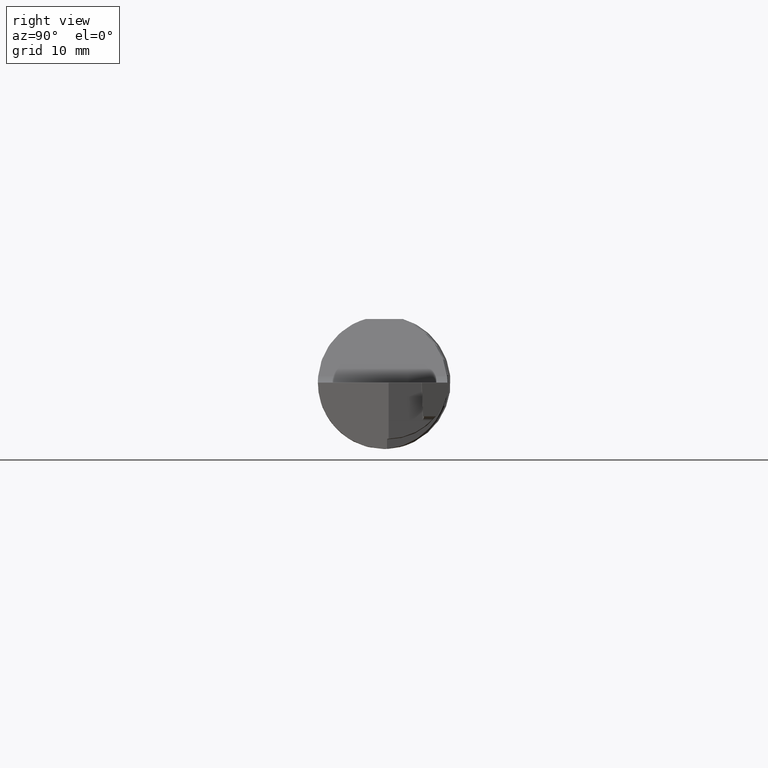
[diagram: clean part render]
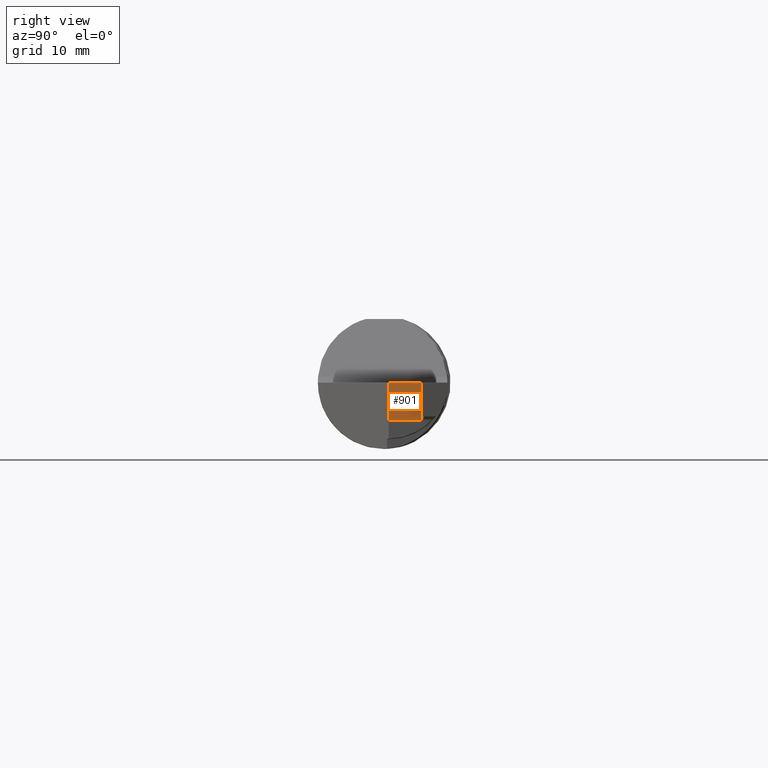
[diagram: same view with one face highlighted and labeled with its STEP entity id]
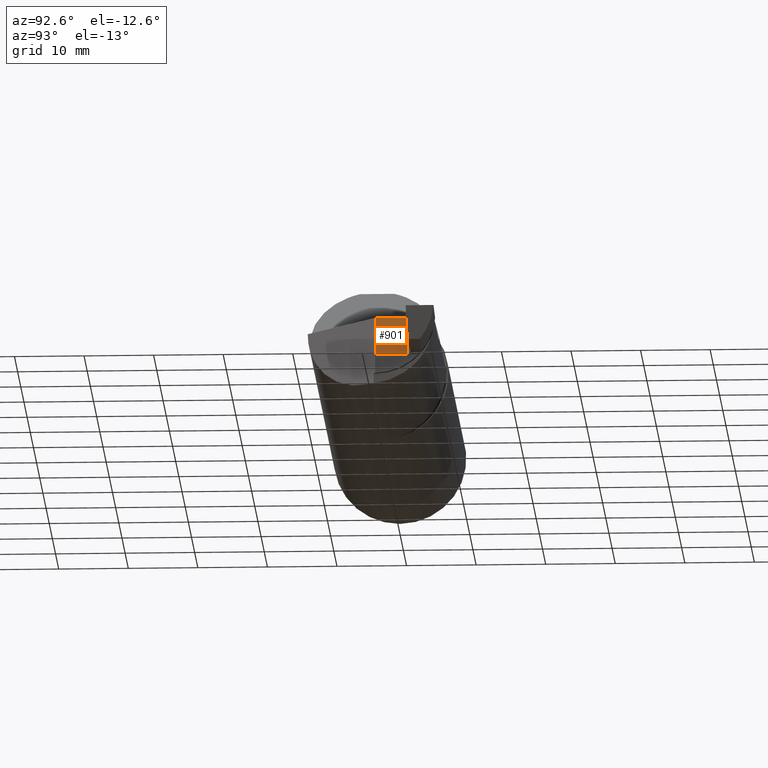
[diagram: same view with one face highlighted and labeled with its STEP entity id]
A machine part, right view. The second image highlights one B-rep face of the part: STEP entity #901.
A second angle (auxiliary view) of the same face is appended — the face is thin or edge-on in the first view.
In plain terms, the highlighted planar face has unit normal (-1, 0, -0).
Its self-contained STEP definition (entity closure, byte-faithful):
#50 = VERTEX_POINT ( 'NONE', #96 ) ;
#72 = LINE ( 'NONE', #404, #275 ) ;
#83 = ORIENTED_EDGE ( 'NONE', *, *, #326, .T. ) ;
#86 = CARTESIAN_POINT ( 'NONE',  ( 3.674999999999999822, 0.02515000000000000221, -0.2127661692096327051 ) ) ;
#96 = CARTESIAN_POINT ( 'NONE',  ( 3.674999999999999822, 0.2083460605317273284, 0.000000000000000000 ) ) ;
#110 = FACE_OUTER_BOUND ( 'NONE', #579, .T. ) ;
#153 = VERTEX_POINT ( 'NONE', #526 ) ;
#183 = VECTOR ( 'NONE', #659, 39.37007874015748143 ) ;
#243 = CARTESIAN_POINT ( 'NONE',  ( 3.674999999999999822, 0.3748500000000000165, -0.2127661692096327051 ) ) ;
#269 = VECTOR ( 'NONE', #971, 39.37007874015748143 ) ;
#275 = VECTOR ( 'NONE', #321, 39.37007874015748143 ) ;
#299 = VERTEX_POINT ( 'NONE', #86 ) ;
#315 = VECTOR ( 'NONE', #989, 39.37007874015748143 ) ;
#321 = DIRECTION ( 'NONE',  ( -0.000000000000000000, -0.000000000000000000, 1.000000000000000000 ) ) ;
#326 = EDGE_CURVE ( 'NONE', #153, #50, #72, .T. ) ;
#330 = PLANE ( 'NONE',  #454 ) ;
#336 = CARTESIAN_POINT ( 'NONE',  ( 3.674999999999999822, 0.2083460605317273284, 0.000000000000000000 ) ) ;
#364 = ORIENTED_EDGE ( 'NONE', *, *, #443, .F. ) ;
#399 = LINE ( 'NONE', #653, #315 ) ;
#402 = VERTEX_POINT ( 'NONE', #891 ) ;
#404 = CARTESIAN_POINT ( 'NONE',  ( 3.674999999999999822, 0.2083460605317273284, -0.3748500000000000165 ) ) ;
#413 = LINE ( 'NONE', #243, #269 ) ;
#426 = ORIENTED_EDGE ( 'NONE', *, *, #857, .T. ) ;
#443 = EDGE_CURVE ( 'NONE', #299, #402, #399, .T. ) ;
#454 = AXIS2_PLACEMENT_3D ( 'NONE', #515, #903, #673 ) ;
#515 = CARTESIAN_POINT ( 'NONE',  ( 3.674999999999999822, 0.2083460605317273284, -0.3748500000000000165 ) ) ;
#526 = CARTESIAN_POINT ( 'NONE',  ( 3.674999999999999378, 0.2083460605317273284, -0.2127661692092613355 ) ) ;
#561 = EDGE_CURVE ( 'NONE', #153, #299, #413, .T. ) ;
#579 = EDGE_LOOP ( 'NONE', ( #955, #83, #426, #364 ) ) ;
#653 = CARTESIAN_POINT ( 'NONE',  ( 3.674999999999999822, 0.02515000000000000221, -0.3748500000000000165 ) ) ;
#659 = DIRECTION ( 'NONE',  ( 0.000000000000000000, -1.000000000000000000, 0.000000000000000000 ) ) ;
#673 = DIRECTION ( 'NONE',  ( -0.000000000000000000, 0.000000000000000000, 1.000000000000000000 ) ) ;
#836 = LINE ( 'NONE', #336, #183 ) ;
#857 = EDGE_CURVE ( 'NONE', #50, #402, #836, .T. ) ;
#891 = CARTESIAN_POINT ( 'NONE',  ( 3.674999999999999822, 0.02515000000000000221, 0.000000000000000000 ) ) ;
#901 = ADVANCED_FACE ( 'NONE', ( #110 ), #330, .F. ) ;
#903 = DIRECTION ( 'NONE',  ( -1.000000000000000000, 0.000000000000000000, -0.000000000000000000 ) ) ;
#955 = ORIENTED_EDGE ( 'NONE', *, *, #561, .F. ) ;
#971 = DIRECTION ( 'NONE',  ( 0.000000000000000000, -1.000000000000000000, 0.000000000000000000 ) ) ;
#989 = DIRECTION ( 'NONE',  ( -0.000000000000000000, -0.000000000000000000, 1.000000000000000000 ) ) ;